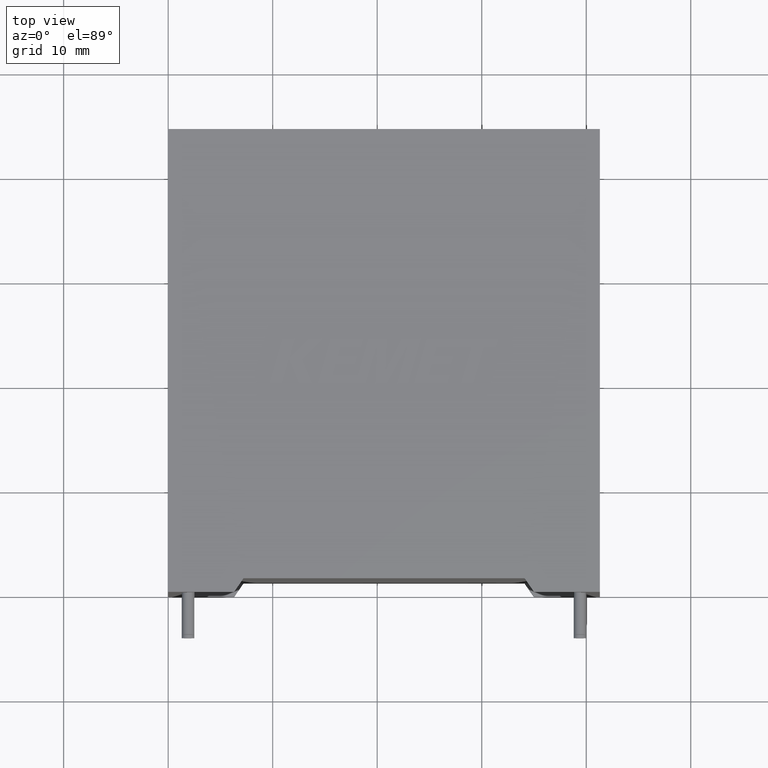
[diagram: clean part render]
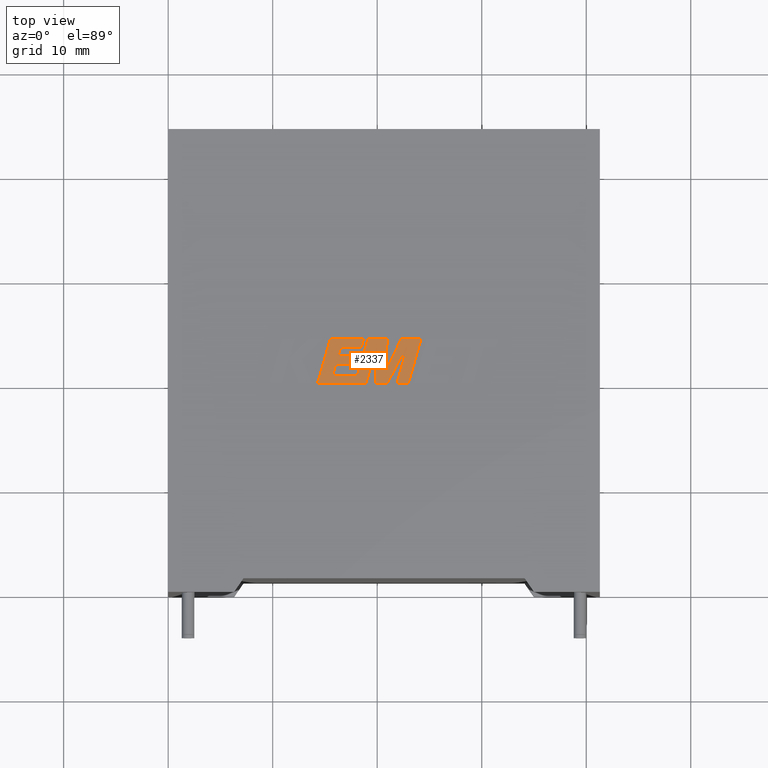
[diagram: same view with one face highlighted and labeled with its STEP entity id]
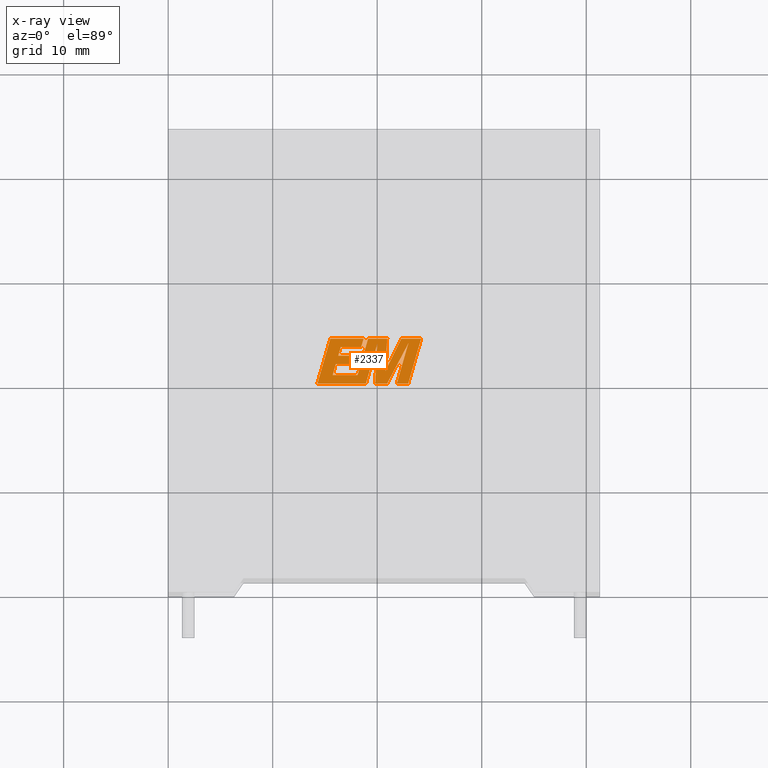
[diagram: x-ray of the same camera — body ghosted, the highlighted face saturated]
A machine part, top view. The second image highlights one B-rep face of the part: STEP entity #2337.
The next image is the same camera in x-ray: the body ghosted, the highlighted face saturated — about 0% of this face is hidden behind the body in this view.
In plain terms, the highlighted planar face has unit normal (0, 0, -1).
Its self-contained STEP definition (entity closure, byte-faithful):
#17 = LINE ( 'NONE', #2275, #1403 ) ;
#23 = CARTESIAN_POINT ( 'NONE',  ( 18.46334398503807600, 23.40337116797831000, 29.30500000000000000 ) ) ;
#51 = AXIS2_PLACEMENT_3D ( 'NONE', #2101, #2090, #2856 ) ;
#101 = CARTESIAN_POINT ( 'NONE',  ( 19.12473683140143900, 24.22188796330467400, 29.30500000000000000 ) ) ;
#117 = EDGE_CURVE ( 'NONE', #169, #2784, #1291, .T. ) ;
#158 = CARTESIAN_POINT ( 'NONE',  ( 18.91418785979892900, 19.92170999999987700, 29.30500000000000000 ) ) ;
#167 = CARTESIAN_POINT ( 'NONE',  ( 16.50413896202838200, 23.40337116797831000, 29.30500000000000000 ) ) ;
#169 = VERTEX_POINT ( 'NONE', #3127 ) ;
#182 = DIRECTION ( 'NONE',  ( 1.000000000000000000, 0.0000000000000000000, 0.0000000000000000000 ) ) ;
#189 = CARTESIAN_POINT ( 'NONE',  ( 20.01341482076186300, 23.75004541138661600, 29.30500000000000000 ) ) ;
#198 = EDGE_CURVE ( 'NONE', #1439, #3432, #2653, .T. ) ;
#200 = VERTEX_POINT ( 'NONE', #742 ) ;
#204 = EDGE_CURVE ( 'NONE', #2204, #200, #1948, .T. ) ;
#215 = DIRECTION ( 'NONE',  ( -0.2765379750249978800, -0.9610029908221272600, 0.0000000000000000000 ) ) ;
#219 = EDGE_CURVE ( 'NONE', #797, #2631, #869, .T. ) ;
#234 = CARTESIAN_POINT ( 'NONE',  ( 21.87127443905528800, 19.92170999999988000, 29.30500000000000000 ) ) ;
#256 = CARTESIAN_POINT ( 'NONE',  ( 18.11708814608682500, 22.60353874671340400, 29.30500000000000000 ) ) ;
#265 = VECTOR ( 'NONE', #1224, 1000.000000000000200 ) ;
#277 = LINE ( 'NONE', #2390, #2374 ) ;
#280 = PLANE ( 'NONE',  #51 ) ;
#302 = DIRECTION ( 'NONE',  ( -1.000000000000000000, 0.0000000000000000000, 0.0000000000000000000 ) ) ;
#304 = DIRECTION ( 'NONE',  ( 0.4668459304955230900, 0.8843386665637600300, 0.0000000000000000000 ) ) ;
#317 = VECTOR ( 'NONE', #1245, 1000.000000000000200 ) ;
#319 = ORIENTED_EDGE ( 'NONE', *, *, #2086, .T. ) ;
#320 = VERTEX_POINT ( 'NONE', #23 ) ;
#324 = ORIENTED_EDGE ( 'NONE', *, *, #2242, .T. ) ;
#341 = LINE ( 'NONE', #2016, #1448 ) ;
#363 = CARTESIAN_POINT ( 'NONE',  ( 18.12386106823173600, 20.73982146601603600, 29.30500000000000000 ) ) ;
#378 = LINE ( 'NONE', #2642, #1979 ) ;
#408 = ORIENTED_EDGE ( 'NONE', *, *, #3306, .T. ) ;
#430 = VECTOR ( 'NONE', #517, 1000.000000000000000 ) ;
#462 = VECTOR ( 'NONE', #1709, 1000.000000000000000 ) ;
#487 = ORIENTED_EDGE ( 'NONE', *, *, #3110, .T. ) ;
#495 = LINE ( 'NONE', #2774, #462 ) ;
#517 = DIRECTION ( 'NONE',  ( 0.2763139702539143500, 0.9610674221107065000, 0.0000000000000000000 ) ) ;
#538 = LINE ( 'NONE', #2318, #2725 ) ;
#567 = ORIENTED_EDGE ( 'NONE', *, *, #219, .T. ) ;
#591 = CARTESIAN_POINT ( 'NONE',  ( 19.79882563456691400, 19.92170999999987700, 29.30500000000000000 ) ) ;
#614 = ORIENTED_EDGE ( 'NONE', *, *, #969, .T. ) ;
#644 = EDGE_CURVE ( 'NONE', #3432, #2992, #1905, .T. ) ;
#688 = EDGE_CURVE ( 'NONE', #320, #1634, #939, .T. ) ;
#693 = CARTESIAN_POINT ( 'NONE',  ( 18.46334398503807600, 23.40337116797831000, 29.30500000000000000 ) ) ;
#739 = DIRECTION ( 'NONE',  ( 0.2732148821746573900, 0.9619530280415400400, 0.0000000000000000000 ) ) ;
#742 = CARTESIAN_POINT ( 'NONE',  ( 24.20034900258642100, 24.22188796330467400, 29.30500000000000000 ) ) ;
#762 = DIRECTION ( 'NONE',  ( -0.2762517575166410500, -0.9610853065513834700, 0.0000000000000000000 ) ) ;
#780 = CARTESIAN_POINT ( 'NONE',  ( 15.51899259146573200, 24.22188796330467400, 29.30500000000000000 ) ) ;
#782 = LINE ( 'NONE', #2842, #1692 ) ;
#797 = VERTEX_POINT ( 'NONE', #1755 ) ;
#821 = VECTOR ( 'NONE', #1721, 1000.000000000000000 ) ;
#869 = LINE ( 'NONE', #1310, #1238 ) ;
#882 = EDGE_CURVE ( 'NONE', #2631, #2825, #277, .T. ) ;
#898 = CARTESIAN_POINT ( 'NONE',  ( 17.89002527699551600, 21.80858335240654700, 29.30500000000000000 ) ) ;
#902 = CARTESIAN_POINT ( 'NONE',  ( 18.12386106823173600, 20.73982146601603600, 29.30500000000000000 ) ) ;
#914 = VERTEX_POINT ( 'NONE', #1408 ) ;
#924 = DIRECTION ( 'NONE',  ( 0.2759782365590843200, 0.9611638845408925200, 0.0000000000000000000 ) ) ;
#939 = LINE ( 'NONE', #693, #3422 ) ;
#967 = CARTESIAN_POINT ( 'NONE',  ( 18.11708814608682500, 22.60353874671340400, 29.30500000000000000 ) ) ;
#969 = EDGE_CURVE ( 'NONE', #2825, #2794, #2121, .T. ) ;
#982 = FACE_OUTER_BOUND ( 'NONE', #2639, .T. ) ;
#1013 = DIRECTION ( 'NONE',  ( -0.2760118818968583200, -0.9611542233438683500, 0.0000000000000000000 ) ) ;
#1019 = DIRECTION ( 'NONE',  ( -1.000000000000000000, 0.0000000000000000000, 0.0000000000000000000 ) ) ;
#1032 = DIRECTION ( 'NONE',  ( -1.000000000000000000, 0.0000000000000000000, 0.0000000000000000000 ) ) ;
#1061 = VECTOR ( 'NONE', #1162, 1000.000000000000000 ) ;
#1082 = ORIENTED_EDGE ( 'NONE', *, *, #2729, .T. ) ;
#1100 = ORIENTED_EDGE ( 'NONE', *, *, #117, .T. ) ;
#1106 = EDGE_CURVE ( 'NONE', #3176, #1200, #1331, .T. ) ;
#1127 = EDGE_CURVE ( 'NONE', #1421, #914, #2619, .T. ) ;
#1146 = EDGE_CURVE ( 'NONE', #2794, #1439, #2116, .T. ) ;
#1150 = VECTOR ( 'NONE', #302, 1000.000000000000000 ) ;
#1162 = DIRECTION ( 'NONE',  ( 0.05375259206908569700, 0.9985542843760946100, 0.0000000000000000000 ) ) ;
#1200 = VERTEX_POINT ( 'NONE', #2840 ) ;
#1204 = ORIENTED_EDGE ( 'NONE', *, *, #2307, .T. ) ;
#1212 = VERTEX_POINT ( 'NONE', #234 ) ;
#1222 = CARTESIAN_POINT ( 'NONE',  ( 17.89002527699551600, 21.80858335240654700, 29.30500000000000000 ) ) ;
#1224 = DIRECTION ( 'NONE',  ( -0.05596501978068446600, -0.9984327301130244700, 0.0000000000000000000 ) ) ;
#1238 = VECTOR ( 'NONE', #1032, 1000.000000000000000 ) ;
#1245 = DIRECTION ( 'NONE',  ( 0.2793947940878290200, 0.9601763114327595000, 0.0000000000000000000 ) ) ;
#1291 = LINE ( 'NONE', #2025, #317 ) ;
#1310 = CARTESIAN_POINT ( 'NONE',  ( 20.95603049113866900, 24.22188796330467400, 29.30500000000000000 ) ) ;
#1325 = CARTESIAN_POINT ( 'NONE',  ( 20.94521462298436300, 19.92170999999987700, 29.30500000000000000 ) ) ;
#1331 = LINE ( 'NONE', #3031, #3252 ) ;
#1350 = ORIENTED_EDGE ( 'NONE', *, *, #2382, .T. ) ;
#1395 = DIRECTION ( 'NONE',  ( -1.000000000000000000, 0.0000000000000000000, 0.0000000000000000000 ) ) ;
#1403 = VECTOR ( 'NONE', #215, 1000.000000000000200 ) ;
#1408 = CARTESIAN_POINT ( 'NONE',  ( 20.01341482076186300, 23.75004541138661600, 29.30500000000000000 ) ) ;
#1421 = VERTEX_POINT ( 'NONE', #2935 ) ;
#1430 = VERTEX_POINT ( 'NONE', #2148 ) ;
#1439 = VERTEX_POINT ( 'NONE', #2451 ) ;
#1448 = VECTOR ( 'NONE', #3053, 1000.000000000000000 ) ;
#1498 = CARTESIAN_POINT ( 'NONE',  ( 22.31432019458089000, 24.22188796330467400, 29.30500000000000000 ) ) ;
#1526 = DIRECTION ( 'NONE',  ( 1.000000000000000000, 0.0000000000000000000, 0.0000000000000000000 ) ) ;
#1528 = CARTESIAN_POINT ( 'NONE',  ( 22.96401613092420000, 19.92170999999988000, 29.30500000000000000 ) ) ;
#1562 = CARTESIAN_POINT ( 'NONE',  ( 22.97594065796553100, 23.76848135779108200, 29.30500000000000000 ) ) ;
#1634 = VERTEX_POINT ( 'NONE', #2515 ) ;
#1692 = VECTOR ( 'NONE', #1526, 1000.000000000000000 ) ;
#1709 = DIRECTION ( 'NONE',  ( 1.000000000000000000, 0.0000000000000000000, 0.0000000000000000000 ) ) ;
#1719 = DIRECTION ( 'NONE',  ( 0.2740217765954297000, 0.9617234872620531400, 0.0000000000000000000 ) ) ;
#1721 = DIRECTION ( 'NONE',  ( 0.2746459304916870100, 0.9615454294334487800, 0.0000000000000000000 ) ) ;
#1752 = VERTEX_POINT ( 'NONE', #2347 ) ;
#1755 = CARTESIAN_POINT ( 'NONE',  ( 20.95603049113866900, 24.22188796330467400, 29.30500000000000000 ) ) ;
#1759 = DIRECTION ( 'NONE',  ( -0.4443210308329524900, -0.8958676361826798400, 0.0000000000000000000 ) ) ;
#1779 = VECTOR ( 'NONE', #2317, 1000.000000000000000 ) ;
#1786 = ORIENTED_EDGE ( 'NONE', *, *, #2977, .T. ) ;
#1801 = VERTEX_POINT ( 'NONE', #3430 ) ;
#1808 = ORIENTED_EDGE ( 'NONE', *, *, #688, .T. ) ;
#1830 = VECTOR ( 'NONE', #924, 1000.000000000000100 ) ;
#1847 = EDGE_CURVE ( 'NONE', #200, #3192, #538, .T. ) ;
#1873 = VECTOR ( 'NONE', #1395, 1000.000000000000000 ) ;
#1877 = CARTESIAN_POINT ( 'NONE',  ( 22.31432019458089000, 24.22188796330467400, 29.30500000000000000 ) ) ;
#1891 = LINE ( 'NONE', #1498, #2144 ) ;
#1905 = LINE ( 'NONE', #898, #821 ) ;
#1914 = VECTOR ( 'NONE', #1719, 1000.000000000000000 ) ;
#1948 = LINE ( 'NONE', #1528, #430 ) ;
#1979 = VECTOR ( 'NONE', #3189, 1000.000000000000000 ) ;
#2016 = CARTESIAN_POINT ( 'NONE',  ( 14.28157447978835700, 19.92170999999987700, 29.30500000000000000 ) ) ;
#2025 = CARTESIAN_POINT ( 'NONE',  ( 16.27140148248087900, 22.60353874671340400, 29.30500000000000000 ) ) ;
#2036 = EDGE_CURVE ( 'NONE', #2992, #169, #2320, .T. ) ;
#2077 = ORIENTED_EDGE ( 'NONE', *, *, #2571, .T. ) ;
#2086 = EDGE_CURVE ( 'NONE', #1212, #2204, #495, .T. ) ;
#2090 = DIRECTION ( 'NONE',  ( 0.0000000000000000000, 0.0000000000000000000, -1.000000000000000000 ) ) ;
#2099 = ORIENTED_EDGE ( 'NONE', *, *, #1847, .T. ) ;
#2101 = CARTESIAN_POINT ( 'NONE',  ( -0.1457575896631480000, -1.623224047257569000, 29.30500000000000000 ) ) ;
#2106 = CARTESIAN_POINT ( 'NONE',  ( 16.04460011617542000, 21.80858335240654700, 29.30500000000000000 ) ) ;
#2116 = LINE ( 'NONE', #3314, #1914 ) ;
#2121 = LINE ( 'NONE', #363, #1873 ) ;
#2144 = VECTOR ( 'NONE', #1759, 1000.000000000000100 ) ;
#2148 = CARTESIAN_POINT ( 'NONE',  ( 22.97594065796553100, 23.76848135779108200, 29.30500000000000000 ) ) ;
#2204 = VERTEX_POINT ( 'NONE', #3374 ) ;
#2242 = EDGE_CURVE ( 'NONE', #2784, #320, #782, .T. ) ;
#2248 = ORIENTED_EDGE ( 'NONE', *, *, #1106, .T. ) ;
#2258 = EDGE_CURVE ( 'NONE', #2376, #1801, #17, .T. ) ;
#2275 = CARTESIAN_POINT ( 'NONE',  ( 15.51899259146573200, 24.22188796330467400, 29.30500000000000000 ) ) ;
#2307 = EDGE_CURVE ( 'NONE', #914, #3176, #3282, .T. ) ;
#2316 = VECTOR ( 'NONE', #1013, 1000.000000000000100 ) ;
#2317 = DIRECTION ( 'NONE',  ( 1.000000000000000000, 0.0000000000000000000, 0.0000000000000000000 ) ) ;
#2318 = CARTESIAN_POINT ( 'NONE',  ( 24.20034900258642100, 24.22188796330467400, 29.30500000000000000 ) ) ;
#2320 = LINE ( 'NONE', #256, #1150 ) ;
#2337 = ADVANCED_FACE ( 'NONE', ( #982 ), #280, .F. ) ;
#2347 = CARTESIAN_POINT ( 'NONE',  ( 20.79065794303273800, 21.14978557581176200, 29.30500000000000000 ) ) ;
#2374 = VECTOR ( 'NONE', #762, 1000.000000000000100 ) ;
#2376 = VERTEX_POINT ( 'NONE', #780 ) ;
#2382 = EDGE_CURVE ( 'NONE', #1430, #1212, #2444, .T. ) ;
#2390 = CARTESIAN_POINT ( 'NONE',  ( 19.12473683140143900, 24.22188796330467400, 29.30500000000000000 ) ) ;
#2431 = LINE ( 'NONE', #2469, #1061 ) ;
#2436 = ORIENTED_EDGE ( 'NONE', *, *, #644, .T. ) ;
#2444 = LINE ( 'NONE', #1562, #2316 ) ;
#2451 = CARTESIAN_POINT ( 'NONE',  ( 16.04460011617542000, 21.80858335240654700, 29.30500000000000000 ) ) ;
#2469 = CARTESIAN_POINT ( 'NONE',  ( 20.79065794303273800, 21.14978557581176200, 29.30500000000000000 ) ) ;
#2515 = CARTESIAN_POINT ( 'NONE',  ( 18.69581996180002300, 24.22188796330467400, 29.30500000000000000 ) ) ;
#2571 = EDGE_CURVE ( 'NONE', #1200, #1430, #3154, .T. ) ;
#2603 = VECTOR ( 'NONE', #304, 1000.000000000000100 ) ;
#2619 = LINE ( 'NONE', #158, #1830 ) ;
#2631 = VERTEX_POINT ( 'NONE', #101 ) ;
#2639 = EDGE_LOOP ( 'NONE', ( #2099, #1786, #408, #567, #3309, #614, #3010, #3044, #2436, #2741, #1100, #324, #1808, #487, #2742, #1082, #3255, #1204, #2248, #2077, #1350, #319, #2641 ) ) ;
#2641 = ORIENTED_EDGE ( 'NONE', *, *, #204, .T. ) ;
#2642 = CARTESIAN_POINT ( 'NONE',  ( 18.69581996180002300, 24.22188796330467400, 29.30500000000000000 ) ) ;
#2653 = LINE ( 'NONE', #2106, #1779 ) ;
#2725 = VECTOR ( 'NONE', #1019, 1000.000000000000000 ) ;
#2729 = EDGE_CURVE ( 'NONE', #1801, #1421, #341, .T. ) ;
#2741 = ORIENTED_EDGE ( 'NONE', *, *, #2036, .T. ) ;
#2742 = ORIENTED_EDGE ( 'NONE', *, *, #2258, .T. ) ;
#2774 = CARTESIAN_POINT ( 'NONE',  ( 21.87127443905528800, 19.92170999999988000, 29.30500000000000000 ) ) ;
#2784 = VERTEX_POINT ( 'NONE', #167 ) ;
#2794 = VERTEX_POINT ( 'NONE', #2801 ) ;
#2801 = CARTESIAN_POINT ( 'NONE',  ( 15.74008012186814800, 20.73982146601603600, 29.30500000000000000 ) ) ;
#2825 = VERTEX_POINT ( 'NONE', #902 ) ;
#2840 = CARTESIAN_POINT ( 'NONE',  ( 20.94521462298436300, 19.92170999999987700, 29.30500000000000000 ) ) ;
#2842 = CARTESIAN_POINT ( 'NONE',  ( 16.50413896202838200, 23.40337116797831000, 29.30500000000000000 ) ) ;
#2856 = DIRECTION ( 'NONE',  ( -1.000000000000000000, 0.0000000000000000000, 0.0000000000000000000 ) ) ;
#2935 = CARTESIAN_POINT ( 'NONE',  ( 18.91418785979892900, 19.92170999999987700, 29.30500000000000000 ) ) ;
#2977 = EDGE_CURVE ( 'NONE', #3192, #1752, #1891, .T. ) ;
#2992 = VERTEX_POINT ( 'NONE', #967 ) ;
#3010 = ORIENTED_EDGE ( 'NONE', *, *, #1146, .T. ) ;
#3031 = CARTESIAN_POINT ( 'NONE',  ( 19.79882563456691400, 19.92170999999987700, 29.30500000000000000 ) ) ;
#3044 = ORIENTED_EDGE ( 'NONE', *, *, #198, .T. ) ;
#3053 = DIRECTION ( 'NONE',  ( 1.000000000000000000, 0.0000000000000000000, 0.0000000000000000000 ) ) ;
#3110 = EDGE_CURVE ( 'NONE', #1634, #2376, #378, .T. ) ;
#3127 = CARTESIAN_POINT ( 'NONE',  ( 16.27140148248087900, 22.60353874671340400, 29.30500000000000000 ) ) ;
#3154 = LINE ( 'NONE', #1325, #2603 ) ;
#3176 = VERTEX_POINT ( 'NONE', #591 ) ;
#3189 = DIRECTION ( 'NONE',  ( -1.000000000000000000, 0.0000000000000000000, 0.0000000000000000000 ) ) ;
#3192 = VERTEX_POINT ( 'NONE', #1877 ) ;
#3252 = VECTOR ( 'NONE', #182, 1000.000000000000000 ) ;
#3255 = ORIENTED_EDGE ( 'NONE', *, *, #1127, .T. ) ;
#3282 = LINE ( 'NONE', #189, #265 ) ;
#3306 = EDGE_CURVE ( 'NONE', #1752, #797, #2431, .T. ) ;
#3309 = ORIENTED_EDGE ( 'NONE', *, *, #882, .T. ) ;
#3314 = CARTESIAN_POINT ( 'NONE',  ( 15.74008012186814800, 20.73982146601603600, 29.30500000000000000 ) ) ;
#3374 = CARTESIAN_POINT ( 'NONE',  ( 22.96401613092420000, 19.92170999999988000, 29.30500000000000000 ) ) ;
#3422 = VECTOR ( 'NONE', #739, 1000.000000000000100 ) ;
#3430 = CARTESIAN_POINT ( 'NONE',  ( 14.28157447978835700, 19.92170999999987700, 29.30500000000000000 ) ) ;
#3432 = VERTEX_POINT ( 'NONE', #1222 ) ;